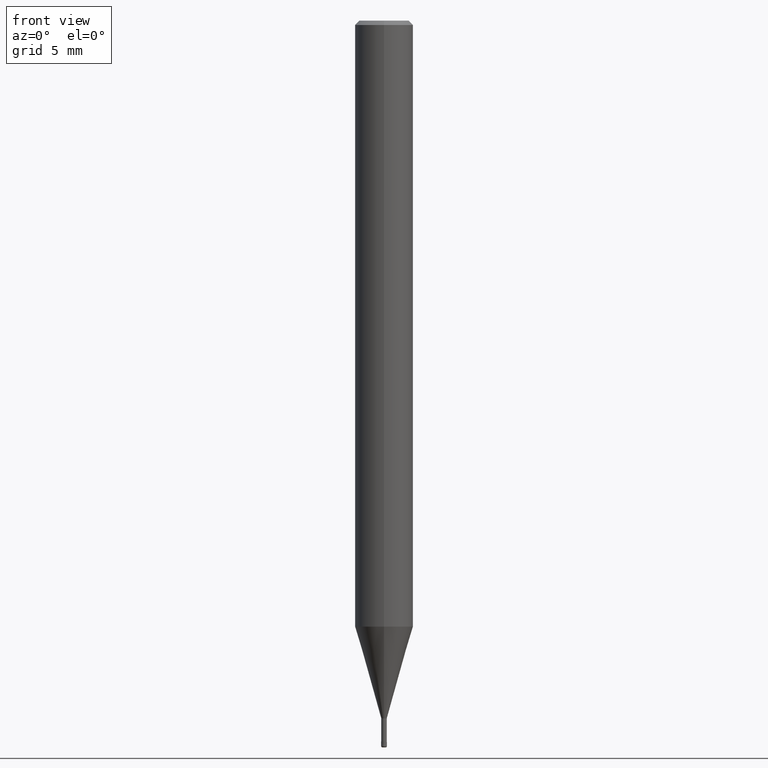
[diagram: clean part render]
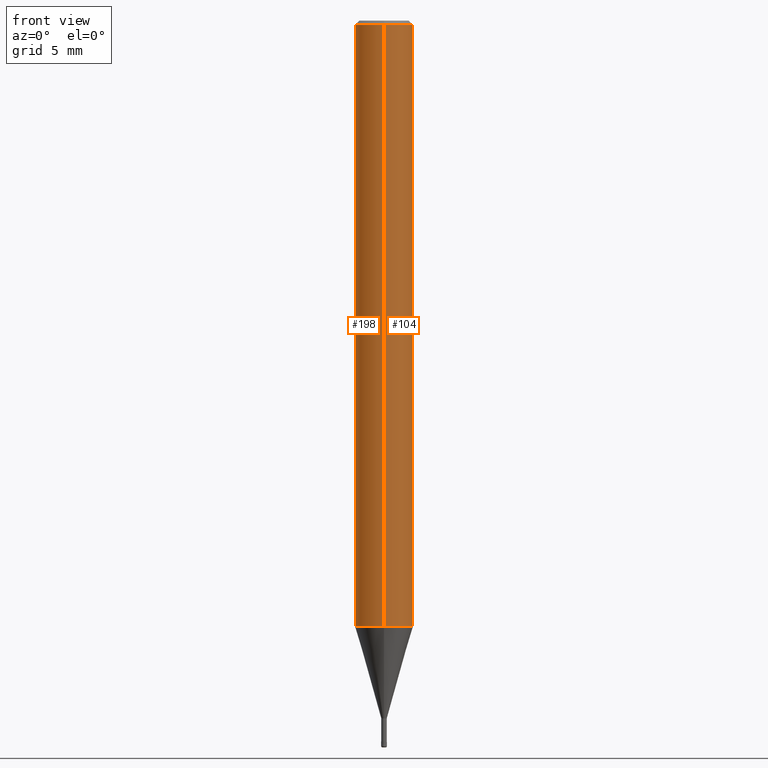
[diagram: same view with one multi-face feature highlighted, each face labeled with its STEP entity id]
A machine part, front view. The highlighted faces form ONE feature: a constant-radius fillet chain: 2 tangent blend faces with common blend radius 2 mm. The faces share edges in the B-rep.
Their STEP definitions:
[1] entity #104 (Cylinder):
#104=ADVANCED_FACE('',(#257),#258,.T.);
#120=VERTEX_POINT('',#276);
#134=EDGE_CURVE('',#164,#174,#290,.T.);
#162=EDGE_CURVE('',#120,#224,#322,.T.);
#164=VERTEX_POINT('',#324);
#174=VERTEX_POINT('',#336);
#202=EDGE_CURVE('',#164,#224,#368,.T.);
#222=EDGE_CURVE('',#174,#120,#392,.T.);
#224=VERTEX_POINT('',#394);
#257=FACE_OUTER_BOUND('',#420,.T.);
#258=CYLINDRICAL_SURFACE('',#421,2.0);
#276=CARTESIAN_POINT('',(2.44921270764475E-016,-2.0,-41.688));
#290=LINE('',#465,#466);
#322=LINE('',#508,#509);
#324=CARTESIAN_POINT('',(0.0,2.0,-0.299999999999997));
#336=CARTESIAN_POINT('',(0.0,2.0,-41.688));
#368=CIRCLE('',#563,2.0);
#392=CIRCLE('',#592,2.0);
#394=CARTESIAN_POINT('',(2.44921270764475E-016,-2.0,-0.299999999999997));
#420=EDGE_LOOP('',(#607,#608,#609,#610));
#421=AXIS2_PLACEMENT_3D('',#611,#612,#613);
#465=CARTESIAN_POINT('',(-2.44921270764475E-016,2.0,-20.994));
#466=VECTOR('',#643,1.0);
#508=CARTESIAN_POINT('',(2.44921270764475E-016,-2.0,-20.994));
#509=VECTOR('',#691,1.0);
#563=AXIS2_PLACEMENT_3D('',#758,#759,#760);
#592=AXIS2_PLACEMENT_3D('',#792,#793,#794);
#607=ORIENTED_EDGE('',*,*,#134,.F.);
#608=ORIENTED_EDGE('',*,*,#202,.T.);
#609=ORIENTED_EDGE('',*,*,#162,.F.);
#610=ORIENTED_EDGE('',*,*,#222,.F.);
#611=CARTESIAN_POINT('',(0.0,0.0,-20.994));
#612=DIRECTION('',(-0.0,-0.0,1.0));
#613=DIRECTION('',(0.0,1.0,0.0));
#643=DIRECTION('',(0.0,0.0,-1.0));
#691=DIRECTION('',(-0.0,-0.0,1.0));
#758=CARTESIAN_POINT('',(0.0,0.0,-0.299999999999997));
#759=DIRECTION('',(0.0,0.0,-1.0));
#760=DIRECTION('',(0.0,1.0,0.0));
#792=CARTESIAN_POINT('',(0.0,0.0,-41.688));
#793=DIRECTION('',(0.0,0.0,-1.0));
#794=DIRECTION('',(0.0,1.0,0.0));
[2] entity #198 (Cylinder):
#120=VERTEX_POINT('',#276);
#134=EDGE_CURVE('',#164,#174,#290,.T.);
#162=EDGE_CURVE('',#120,#224,#322,.T.);
#164=VERTEX_POINT('',#324);
#174=VERTEX_POINT('',#336);
#198=ADVANCED_FACE('',(#363),#364,.T.);
#200=EDGE_CURVE('',#120,#174,#366,.T.);
#224=VERTEX_POINT('',#394);
#228=EDGE_CURVE('',#224,#164,#398,.T.);
#276=CARTESIAN_POINT('',(2.44921270764475E-016,-2.0,-41.688));
#290=LINE('',#465,#466);
#322=LINE('',#508,#509);
#324=CARTESIAN_POINT('',(0.0,2.0,-0.299999999999997));
#336=CARTESIAN_POINT('',(0.0,2.0,-41.688));
#363=FACE_OUTER_BOUND('',#556,.T.);
#364=CYLINDRICAL_SURFACE('',#557,2.0);
#366=CIRCLE('',#560,2.0);
#394=CARTESIAN_POINT('',(2.44921270764475E-016,-2.0,-0.299999999999997));
#398=CIRCLE('',#599,2.0);
#465=CARTESIAN_POINT('',(-2.44921270764475E-016,2.0,-20.994));
#466=VECTOR('',#643,1.0);
#508=CARTESIAN_POINT('',(2.44921270764475E-016,-2.0,-20.994));
#509=VECTOR('',#691,1.0);
#556=EDGE_LOOP('',(#748,#749,#750,#751));
#557=AXIS2_PLACEMENT_3D('',#752,#753,#754);
#560=AXIS2_PLACEMENT_3D('',#755,#756,#757);
#599=AXIS2_PLACEMENT_3D('',#795,#796,#797);
#643=DIRECTION('',(0.0,0.0,-1.0));
#691=DIRECTION('',(-0.0,-0.0,1.0));
#748=ORIENTED_EDGE('',*,*,#134,.T.);
#749=ORIENTED_EDGE('',*,*,#200,.F.);
#750=ORIENTED_EDGE('',*,*,#162,.T.);
#751=ORIENTED_EDGE('',*,*,#228,.T.);
#752=CARTESIAN_POINT('',(0.0,0.0,-20.994));
#753=DIRECTION('',(-0.0,-0.0,1.0));
#754=DIRECTION('',(0.0,1.0,0.0));
#755=CARTESIAN_POINT('',(0.0,0.0,-41.688));
#756=DIRECTION('',(0.0,0.0,-1.0));
#757=DIRECTION('',(0.0,1.0,0.0));
#795=CARTESIAN_POINT('',(0.0,0.0,-0.299999999999997));
#796=DIRECTION('',(0.0,0.0,-1.0));
#797=DIRECTION('',(0.0,1.0,0.0));